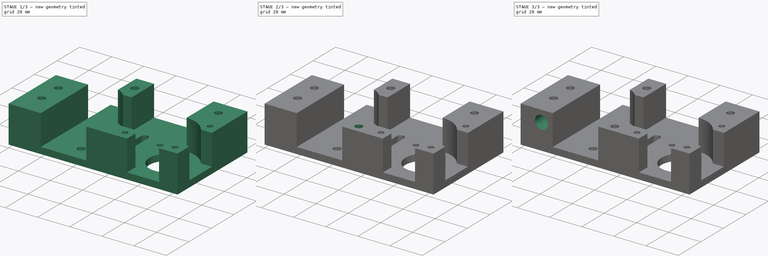
[diagram: build sequence overview — one tinted view per stage of 3, left to right]
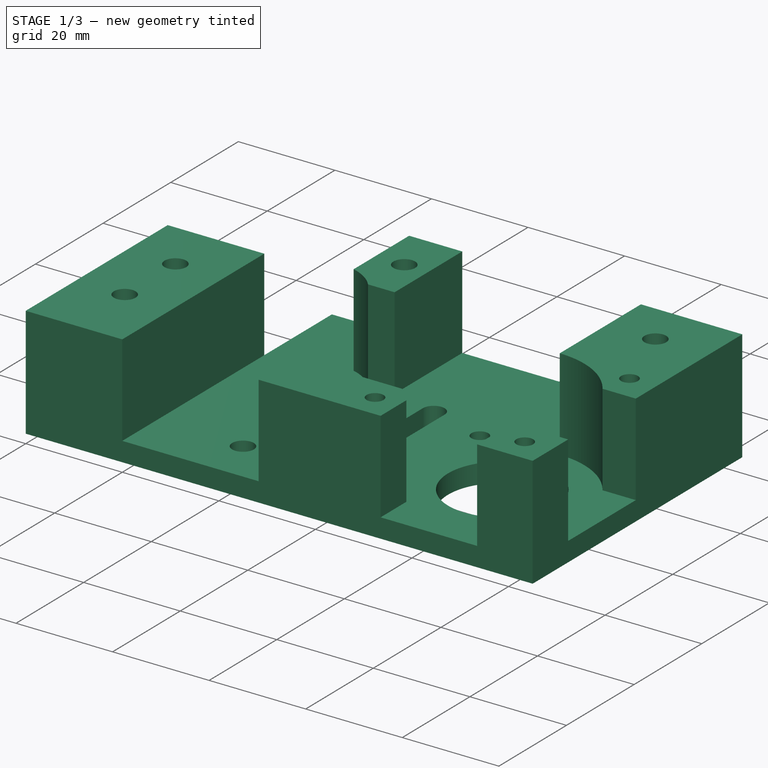
[diagram: stage 1 of 3 — iso view after this stage's code; geometry added in this stage tinted green]
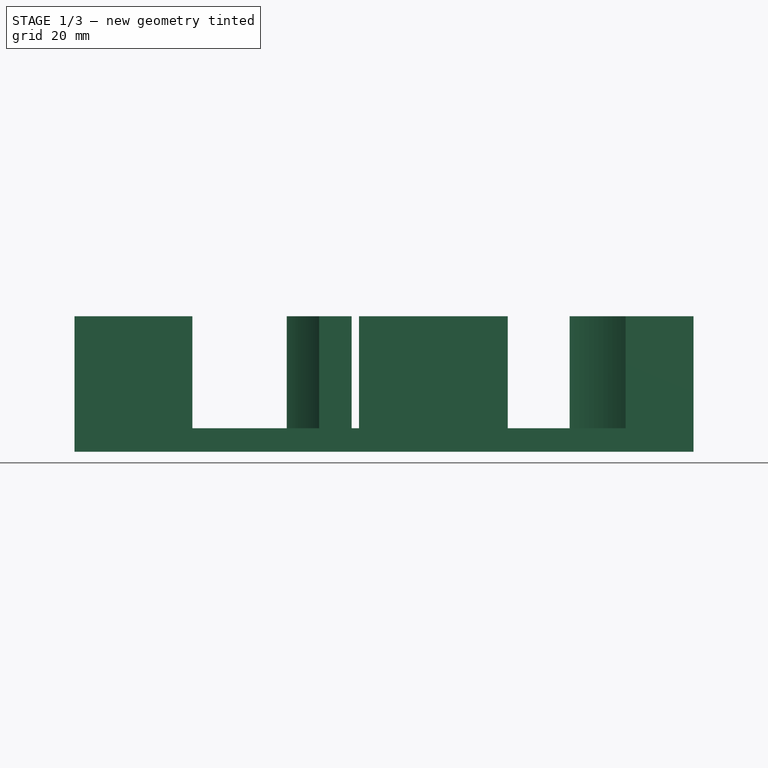
[diagram: stage 1 of 3 — front view after this stage's code; geometry added in this stage tinted green]
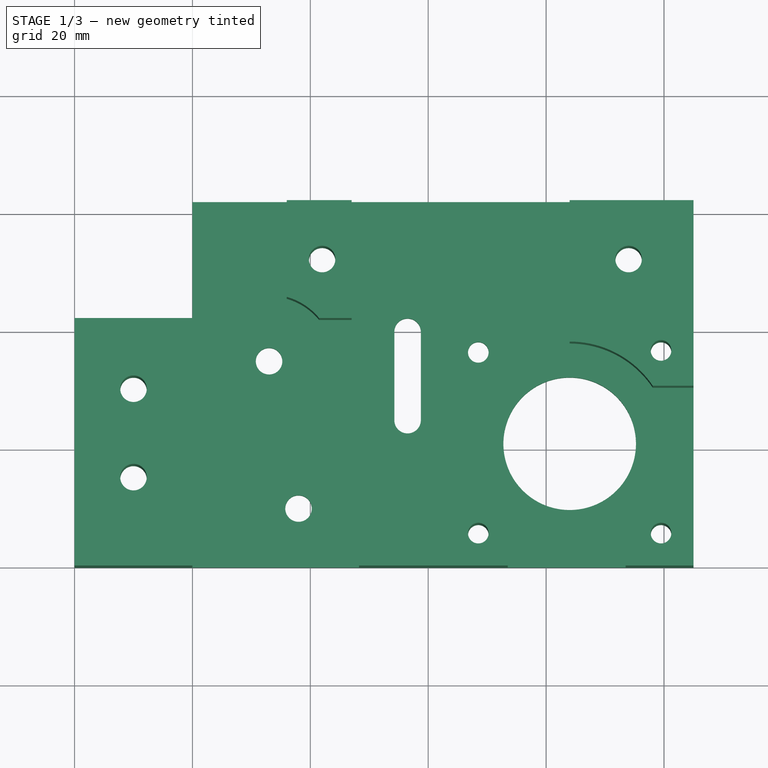
[diagram: stage 1 of 3 — top view after this stage's code; geometry added in this stage tinted green]
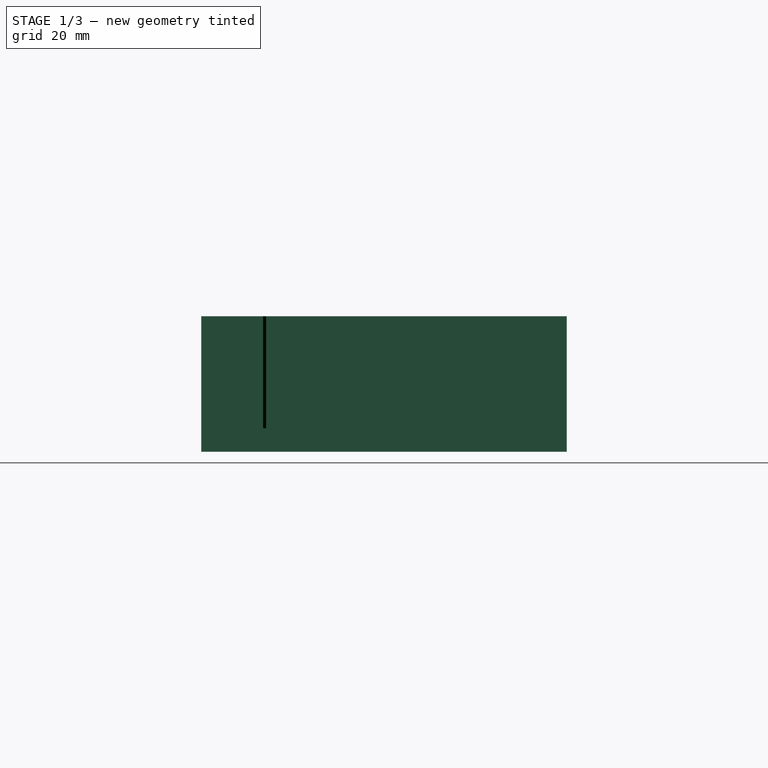
[diagram: stage 1 of 3 — right view after this stage's code; geometry added in this stage tinted green]
FCSTD DOCUMENT  (FreeCAD 0.16R4945 (Git))
Label: motor-block
License: All rights reserved
LicenseURL: http://en.wikipedia.org/wiki/All_rights_reserved
objects: Sketcher::SketchObject×5, PartDesign::Pocket×4, PartDesign::Pad×1
note: 15 computed .brp shape members not serialized (recipe doc carries the construction recipe); baked Part::Feature solids carry a one-line shape summary decoded from their .brp

FEATURE [Sketcher::SketchObject] Sketch
  sketch-geometry (26):
    g0: LineSegment StartX=0 StartY=0 StartZ=0 EndX=105 EndY=0 EndZ=0
    g1: LineSegment StartX=105 StartY=0 StartZ=0 EndX=105 EndY=62 EndZ=0
    g2: LineSegment StartX=105 StartY=62 StartZ=0 EndX=20 EndY=62 EndZ=0
    g3: LineSegment StartX=0 StartY=42 StartZ=0 EndX=0 EndY=0 EndZ=0
    g4: Circle CenterX=38 CenterY=10 CenterZ=0 NormalX=0 NormalY=0 NormalZ=1 Radius=2.25
    g5: Circle CenterX=33 CenterY=35 CenterZ=0 NormalX=0 NormalY=0 NormalZ=1 Radius=2.25
    g6: Circle CenterX=84 CenterY=21 CenterZ=0 NormalX=0 NormalY=0 NormalZ=1 Radius=11.25
    g7: LineSegment StartX=20 StartY=62 StartZ=0 EndX=20 EndY=42 EndZ=0
    g8: LineSegment StartX=20 StartY=42 StartZ=0 EndX=0 EndY=42 EndZ=0
    g9: LineSegment [constr] StartX=68.5 StartY=36.5 StartZ=0 EndX=99.5 EndY=36.5 EndZ=0
    g10: LineSegment [constr] StartX=99.5 StartY=36.5 StartZ=0 EndX=99.5 EndY=5.5 EndZ=0
    g11: LineSegment [constr] StartX=99.5 StartY=5.5 StartZ=0 EndX=68.5 EndY=5.5 EndZ=0
    g12: LineSegment [constr] StartX=68.5 StartY=5.5 StartZ=0 EndX=68.5 EndY=36.5 EndZ=0
    g13: Circle CenterX=68.5 CenterY=36.5 CenterZ=0 NormalX=0 NormalY=0 NormalZ=1 Radius=1.75
    g14: Circle CenterX=99.5 CenterY=36.5 CenterZ=0 NormalX=0 NormalY=0 NormalZ=1 Radius=1.75
    g15: Circle CenterX=68.5 CenterY=5.5 CenterZ=0 NormalX=0 NormalY=0 NormalZ=1 Radius=1.75
    g16: Circle CenterX=99.5 CenterY=5.5 CenterZ=0 NormalX=0 NormalY=0 NormalZ=1 Radius=1.75
    g17: Circle [constr] CenterX=56.5 CenterY=25 CenterZ=0 NormalX=0 NormalY=0 NormalZ=1 Radius=6.5
    g18: LineSegment StartX=58.75 StartY=25 StartZ=0 EndX=58.75 EndY=40 EndZ=0
    g19: LineSegment StartX=54.25 StartY=25 StartZ=0 EndX=54.25 EndY=40 EndZ=0
    g20: ArcOfCircle CenterX=56.5 CenterY=40 CenterZ=0 NormalX=0 NormalY=0 NormalZ=1 Radius=2.25 StartAngle=6.28318 EndAngle=9.42478
    g21: ArcOfCircle CenterX=56.5 CenterY=25 CenterZ=0 NormalX=0 NormalY=0 NormalZ=1 Radius=2.25 StartAngle=3.14159 EndAngle=6.28319
    g22: Circle CenterX=10 CenterY=30 CenterZ=0 NormalX=0 NormalY=0 NormalZ=1 Radius=2.25
    g23: Circle CenterX=10 CenterY=15 CenterZ=0 NormalX=0 NormalY=0 NormalZ=1 Radius=2.25
    g24: Circle CenterX=42 CenterY=52 CenterZ=0 NormalX=0 NormalY=0 NormalZ=1 Radius=2.25
    g25: Circle CenterX=94 CenterY=52 CenterZ=0 NormalX=0 NormalY=0 NormalZ=1 Radius=2.25
  constraints (74):
    c: Coincident(g0,g1)
    c: Coincident(g1,g2)
    c: Coincident(g3,g0)
    c: Horizontal(g0)
    c: Horizontal(g2)
    c: Vertical(g1)
    c: Vertical(g3)
    c: Distance(g0) = 105
    c: Distance(g1) = 62
    c: DistanceX(g4,g0) = -38
    c: DistanceY(g4,g0) = -10
    c: Radius(g4) = 2.25
    c: Equal(g5,g4)
    c: DistanceX(g4,g5) = -5
    c: DistanceY(g4,g5) = 25
    c: DistanceX(g6,g0) = -84
    c: DistanceY(g6,g0) = -21
    c: Coincident(g-1,g0)
    c: Vertical(g7)
    c: Coincident(g8,g7)
    c: Horizontal(g8)
    c: Coincident(g2,g7)
    c: Coincident(g3,g8)
    c: DistanceX(g3,g2) = 20
    c: DistanceY(g2,g3) = -20
    c: Radius(g6) = 11.25
    c: Coincident(g9,g10)
    c: Coincident(g10,g11)
    c: Coincident(g11,g12)
    c: Coincident(g12,g9)
    c: Horizontal(g9)
    c: Horizontal(g11)
    c: Vertical(g10)
    c: Vertical(g12)
    c: Equal(g9,g12)
    c: Distance(g9) = 31
    c: DistanceX(g6,g9) = -15.5
    c: DistanceY(g6,g11) = -15.5
    c: Coincident(g13,g9)
    c: Coincident(g14,g9)
    c: Coincident(g15,g11)
    c: Coincident(g16,g10)
    c: Equal(g13,g14)
    c: Equal(g14,g16)
    c: Equal(g16,g15)
    c: Radius(g13) = 1.75
    c: Radius(g17) = 6.5
    c: DistanceY(g6,g17) = 4
    c: DistanceX(g17,g6) = 27.5
    c: Vertical(g18)
    c: Vertical(g19)
    c: Coincident(g20,g18)
    c: Coincident(g19,g20)
    c: Tangent(g20,g19)
    c: Tangent(g20,g18)
    c: Coincident(g21,g17)
    c: Coincident(g21,g19)
    c: Coincident(g18,g21)
    c: Tangent(g21,g19)
    c: Tangent(g21,g18)
    c: Equal(g20,g5)
    c: DistanceY(g17,g20) = 15
    c: DistanceX(g-1,g23) = 10
    c: DistanceX(g-1,g22) = 10
    c: Distance(g23,g22) = 15
    c: DistanceY(g-1,g22) = 30
    c: Equal(g22,g23)
    c: Equal(g22,g5)
    c: Equal(g22,g24)
    c: DistanceY(g24,g25) = 0
    c: DistanceX(g-1,g24) = 42
    c: DistanceY(g-1,g24) = 52
    c: Distance(g24,g25) = 52
    c: Equal(g25,g24)
FEATURE [PartDesign::Pad] Pad
  Length = 23
  Length2 = 100
  Sketch = -> Sketch
  Type = 0
FEATURE [Sketcher::SketchObject] Sketch001
  Placement = pos=(0,0,23) rot=(0,0,1;0rad)
  Support = -> Pad [Face23]
  sketch-geometry (23):
    g0: ArcOfCircle CenterX=33 CenterY=35 CenterZ=0 NormalX=0 NormalY=0 NormalZ=1 Radius=11 StartAngle=0.689775 EndAngle=1.29457
    g1: ArcOfCircle CenterX=84 CenterY=21 CenterZ=0 NormalX=0 NormalY=0 NormalZ=1 Radius=17 StartAngle=3.77047 EndAngle=4.04664
    g2: LineSegment StartX=41.4853 StartY=42 StartZ=0 EndX=47 EndY=42 EndZ=0
    g3: LineSegment StartX=48.2523 StartY=11 StartZ=0 EndX=70.2523 EndY=11 EndZ=0
    g4: LineSegment StartX=20 StartY=-1 StartZ=0 EndX=48.2523 EndY=-1 EndZ=0
    g5: Circle [constr] CenterX=68.5 CenterY=5.5 CenterZ=0 NormalX=0 NormalY=0 NormalZ=1 Radius=3.5
    g6: Circle [constr] CenterX=99.5 CenterY=5.4974 CenterZ=0 NormalX=0 NormalY=0 NormalZ=1 Radius=3.5
    g7: Circle [constr] CenterX=99.5 CenterY=36.5 CenterZ=0 NormalX=0 NormalY=0 NormalZ=1 Radius=3.5
    g8: LineSegment StartX=73.5 StartY=7.63026 StartZ=0 EndX=73.5 EndY=-1 EndZ=0
    g9: LineSegment StartX=73.5 StartY=-1 StartZ=0 EndX=93.5 EndY=-1 EndZ=0
    g10: LineSegment StartX=93.5 StartY=-1 StartZ=0 EndX=93.5 EndY=6.90213 EndZ=0
    g11: ArcOfCircle CenterX=84 CenterY=21 CenterZ=0 NormalX=0 NormalY=0 NormalZ=1 Radius=17 StartAngle=5.30536 EndAngle=5.61724
    g12: LineSegment StartX=98.0996 StartY=30.4974 StartZ=0 EndX=105.5 EndY=30.4974 EndZ=0
    g13: LineSegment StartX=105.5 StartY=30.4974 StartZ=0 EndX=105.5 EndY=10.4974 EndZ=0
    g14: LineSegment StartX=105.5 StartY=10.4974 StartZ=0 EndX=97.3677 EndY=10.4974 EndZ=0
    g15: ArcOfCircle CenterX=84 CenterY=21 CenterZ=0 NormalX=0 NormalY=0 NormalZ=1 Radius=17 StartAngle=0.592782 EndAngle=1.5708
    g16: LineSegment StartX=84 StartY=38 StartZ=0 EndX=84 EndY=67 EndZ=0
    g17: LineSegment StartX=84 StartY=67 StartZ=0 EndX=47 EndY=67 EndZ=0
    g18: LineSegment StartX=47 StartY=67 StartZ=0 EndX=47 EndY=42 EndZ=0
    g19: LineSegment StartX=20 StartY=-1 StartZ=0 EndX=20 EndY=67 EndZ=0
    g20: LineSegment StartX=20 StartY=67 StartZ=0 EndX=36 EndY=67 EndZ=0
    g21: LineSegment StartX=36 StartY=67 StartZ=0 EndX=36 EndY=45.583 EndZ=0
    g22: LineSegment StartX=48.2523 StartY=11 StartZ=0 EndX=48.2523 EndY=-1 EndZ=0
  constraints (71):
    c: Radius(g1) = 17
    c: Radius(g0) = 11
    c: Horizontal(g3)
    c: Coincident(g0,g2)
    c: Horizontal(g4)
    c: Coincident(g1,g3)
    c: DistanceY(g0) = 35
    c: DistanceY(g1) = 21
    c: DistanceX(g5,g1) = 15.5
    c: DistanceY(g5,g1) = 15.5
    c: Radius(g5) = 3.5
    c: Equal(g5,g6)
    c: Equal(g6,g7)
    c: DistanceX(g6,g1) = -15.5
    c: DistanceX(g1,g7) = 15.5
    c: DistanceY(g7,g1) = -15.5
    c: DistanceY(g6,g1) = 15.5026
    c: DistanceX(g-1,g4) = 20
    c: Vertical(g8)
    c: Coincident(g8,g9)
    c: Horizontal(g9)
    c: Coincident(g9,g10)
    c: Vertical(g10)
    c: Equal(g1,g11)
    c: Coincident(g1,g8)
    c: Coincident(g11,g10)
    c: Coincident(g1,g11)
    c: DistanceY(g8) = -1
    c: Distance(g9) = 20
    c: DistanceX(g-1,g1) = 84
    c: DistanceX(g5,g8) = 5
    c: Horizontal(g12)
    c: Coincident(g12,g13)
    c: Vertical(g13)
    c: Coincident(g13,g14)
    c: Horizontal(g14)
    c: Equal(g11,g15)
    c: Coincident(g11,g14)
    c: Coincident(g15,g12)
    c: Coincident(g11,g15)
    c: Distance(g13) = 20
    c: DistanceY(g6,g13) = 5
    c: DistanceX(g6,g13) = 6
    c: Coincident(g15,g16)
    c: Vertical(g16)
    c: Coincident(g16,g17)
    c: Horizontal(g17)
    c: Coincident(g17,g18)
    c: Vertical(g18)
    c: Coincident(g2,g18)
    c: Horizontal(g2)
    c: Distance(g17) = 37
    c: Perpendicular(g16,g15)
    c: Distance(g2,g17) = 25
    c: DistanceY(g0,g0) = 7
    c: Coincident(g19,g4)
    c: Vertical(g19)
    c: Coincident(g20,g19)
    c: Horizontal(g20)
    c: Coincident(g21,g20)
    c: Coincident(g21,g0)
    c: Vertical(g21)
    c: DistanceX(g17,g20) = -11
    c: DistanceY(g20,g17) = 0
    c: Coincident(g22,g3)
    c: Vertical(g22)
    c: Coincident(g4,g22)
    c: Distance(g3) = 22
    c: Distance(g22) = 12
    c: DistanceY(g8,g4) = 0
    c: DistanceX(g0,g1) = 51
FEATURE [PartDesign::Pocket] Pocket  label="Pocket belt path"
  Length = 19
  Sketch = -> Sketch001
  Type = 0
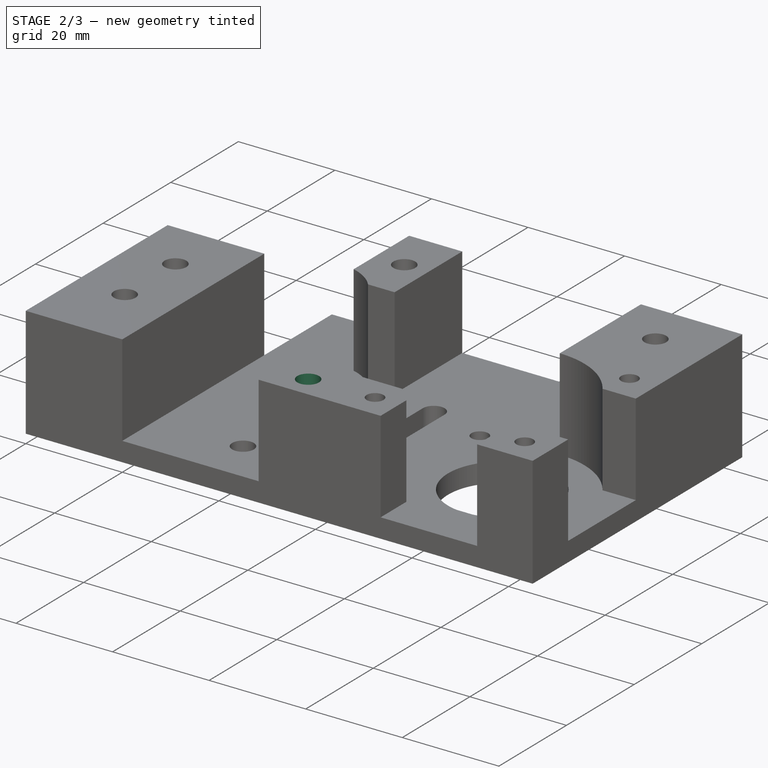
[diagram: stage 2 of 3 — iso view after this stage's code; geometry added in this stage tinted green]
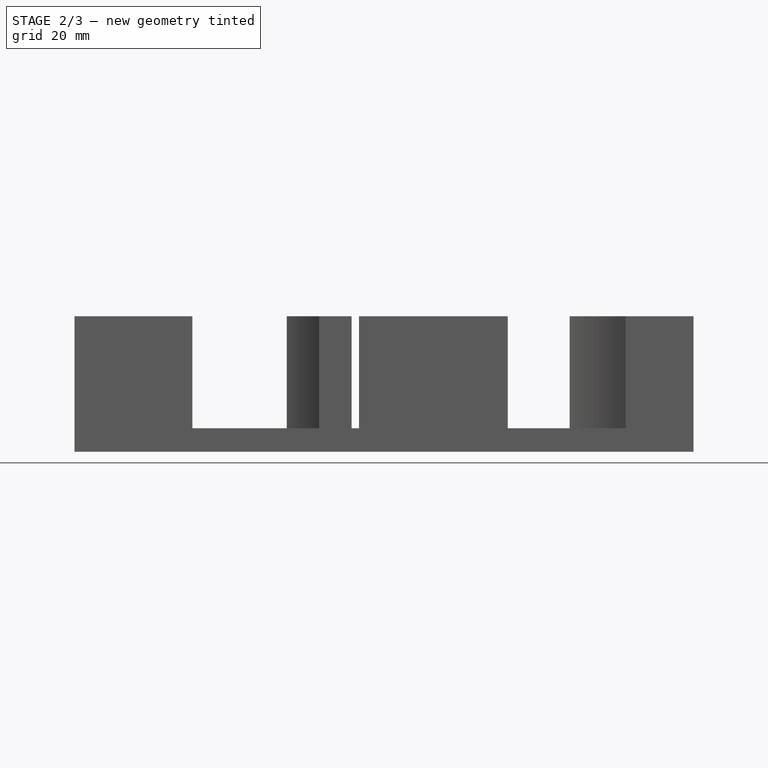
[diagram: stage 2 of 3 — front view after this stage's code; geometry added in this stage tinted green]
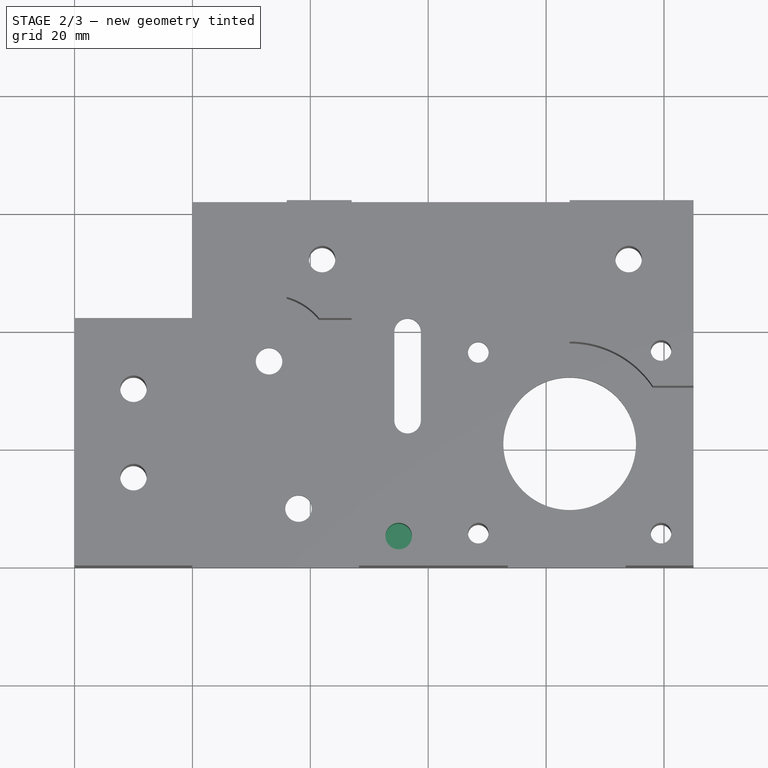
[diagram: stage 2 of 3 — top view after this stage's code; geometry added in this stage tinted green]
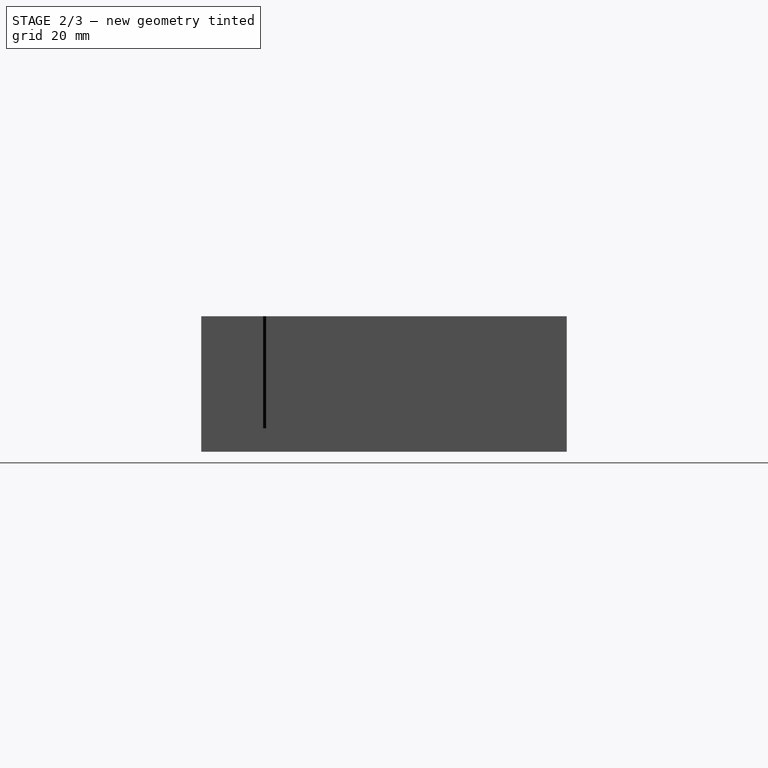
[diagram: stage 2 of 3 — right view after this stage's code; geometry added in this stage tinted green]
FEATURE [Sketcher::SketchObject] Sketch004
  ExternalGeometry = -> [Pocket]
  Placement = pos=(0,0,23) rot=(0,0,1;0rad)
  Support = -> Pocket [Face8]
  sketch-geometry (1):
    g0: Circle CenterX=55 CenterY=5 CenterZ=0 NormalX=0 NormalY=0 NormalZ=1 Radius=2.25
  constraints (3):
    c: DistanceX(g-2,g0) = 55
    c: DistanceY(g-1,g0) = 5
    c: Equal(g0,g-3)
FEATURE [PartDesign::Pocket] Pocket003
  Length = 10
  Sketch = -> Sketch004
  Type = 0
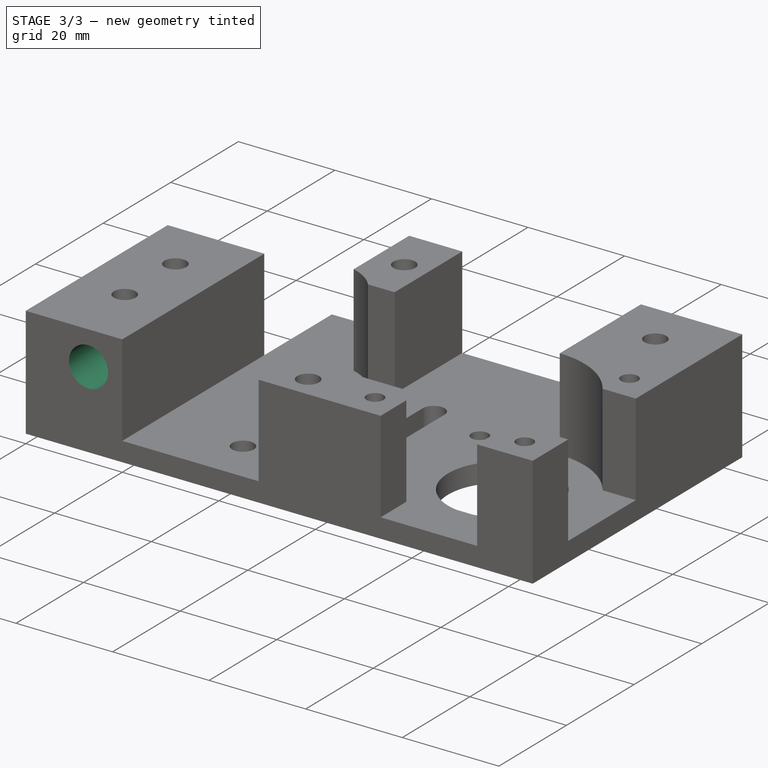
[diagram: stage 3 of 3 — iso view after this stage's code; geometry added in this stage tinted green]
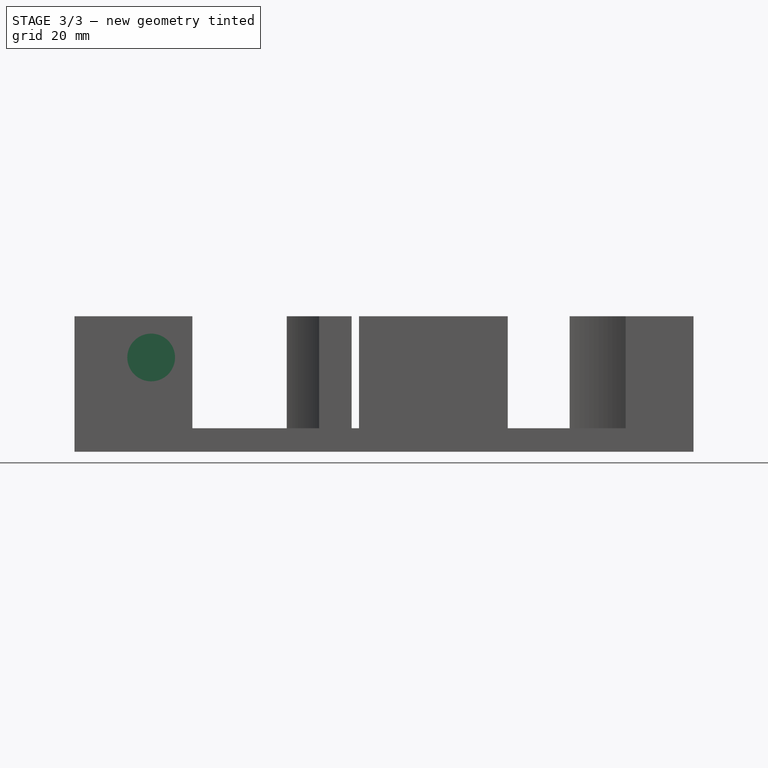
[diagram: stage 3 of 3 — front view after this stage's code; geometry added in this stage tinted green]
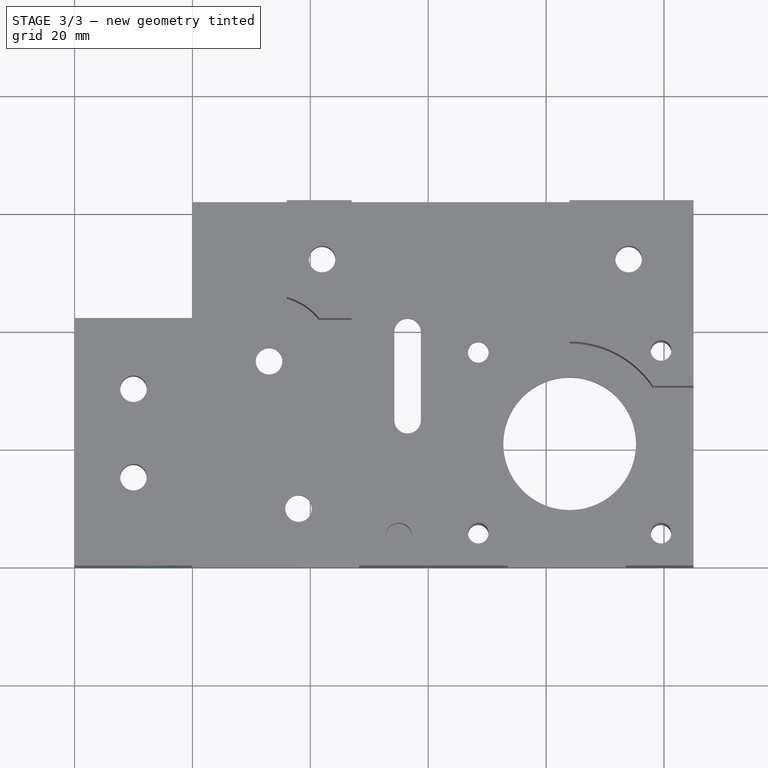
[diagram: stage 3 of 3 — top view after this stage's code; geometry added in this stage tinted green]
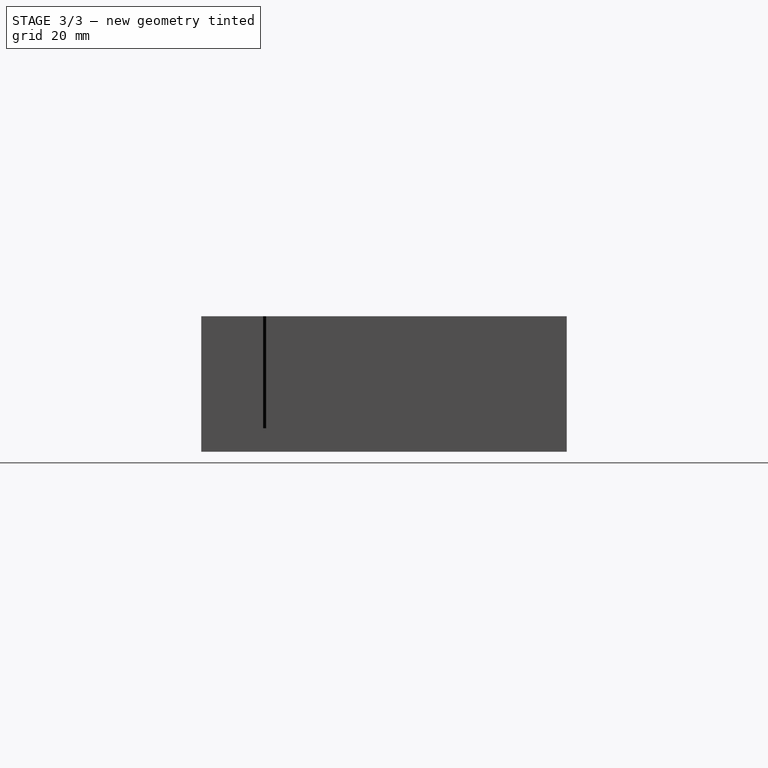
[diagram: stage 3 of 3 — right view after this stage's code; geometry added in this stage tinted green]
FEATURE [Sketcher::SketchObject] Sketch005
  Placement = pos=(0,0,0) rot=(1,0,0;1.5708rad)
  Support = -> Pocket003 [Face1]
  sketch-geometry (1):
    g0: Circle CenterX=13 CenterY=16 CenterZ=0 NormalX=0 NormalY=0 NormalZ=1 Radius=4.05
  constraints (3):
    c: Radius(g0) = 4.05
    c: DistanceY(g-1,g0) = 16
    c: DistanceX(g-2,g0) = 13
FEATURE [PartDesign::Pocket] Pocket004
  Length = 12
  Sketch = -> Sketch005
  Type = 0
FEATURE [Sketcher::SketchObject] Sketch006
  ExternalGeometry = -> [Pocket004]
  Placement = pos=(0,0,0) rot=(1,0,0;3.14159rad)
  Support = -> Pocket004 [Face2]
  sketch-geometry (4):
    g0: Circle CenterX=10 CenterY=-15 CenterZ=0 NormalX=0 NormalY=0 NormalZ=1 Radius=3.75
    g1: Circle CenterX=10 CenterY=-30 CenterZ=0 NormalX=0 NormalY=0 NormalZ=1 Radius=3.75
    g2: Circle CenterX=42 CenterY=-52 CenterZ=0 NormalX=0 NormalY=0 NormalZ=1 Radius=3.75
    g3: Circle CenterX=94 CenterY=-52 CenterZ=0 NormalX=0 NormalY=0 NormalZ=1 Radius=3.75
  constraints (8):
    c: Coincident(g0,g-3)
    c: Coincident(g1,g-4)
    c: Coincident(g2,g-5)
    c: Coincident(g3,g-6)
    c: Radius(g0) = 3.75
    c: Equal(g1,g2)
    c: Equal(g2,g3)
    c: Equal(g3,g0)
FEATURE [PartDesign::Pocket] Pocket005
  Length = 10
  Sketch = -> Sketch006
  Type = 0
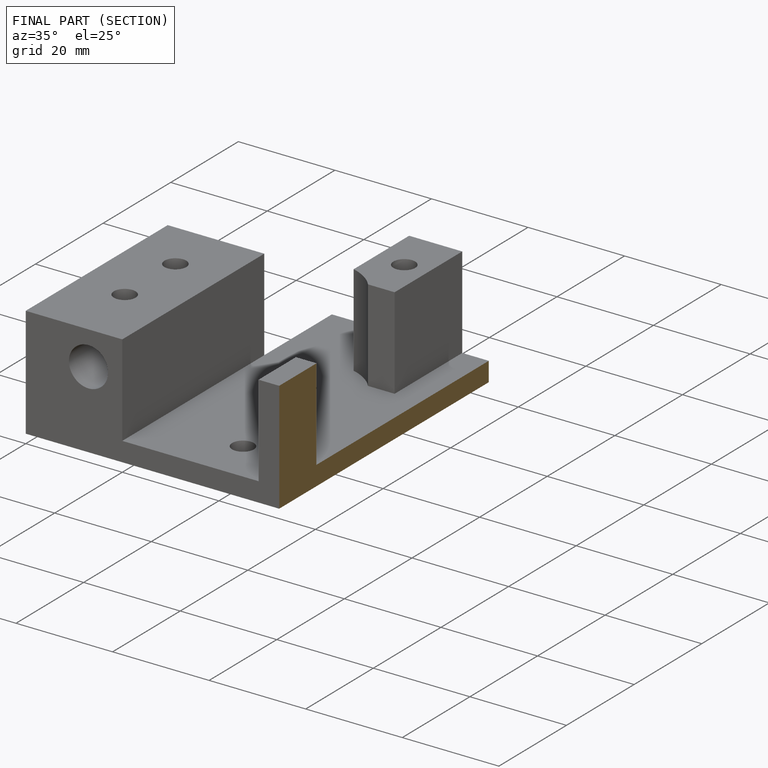
[diagram: finished part — half-section view (interior)]
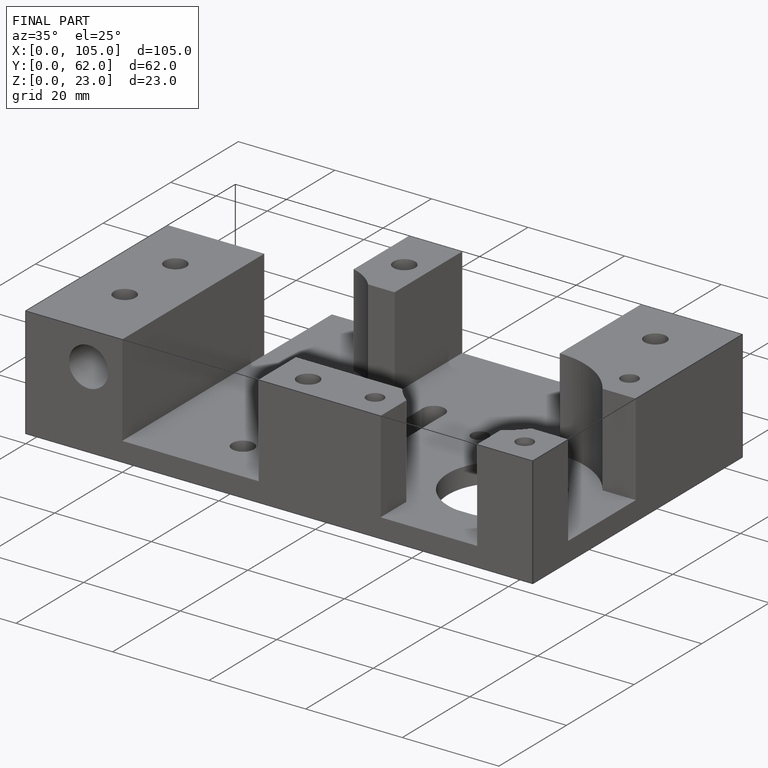
[diagram: finished part — iso view with bounding-box wireframe]
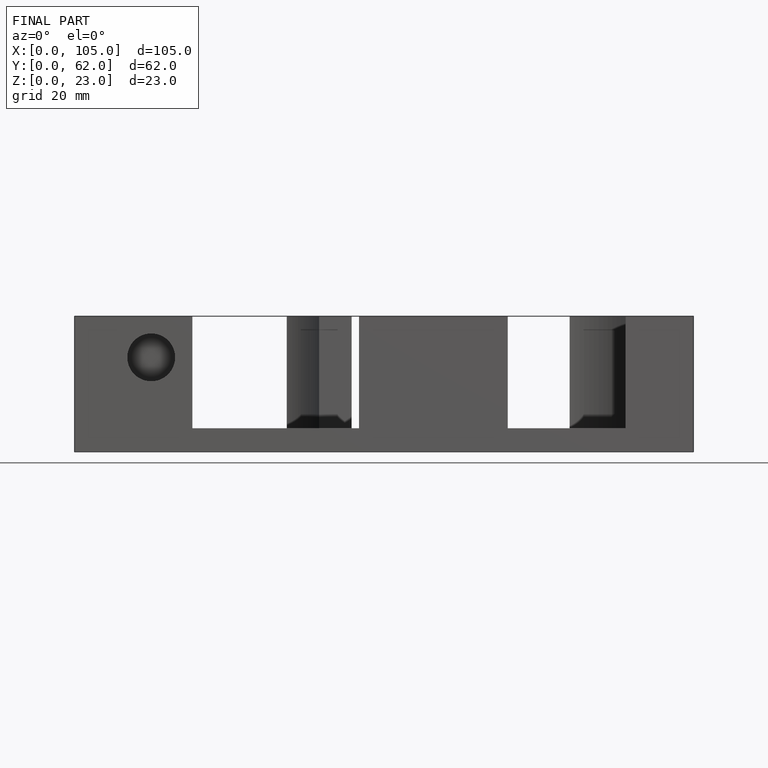
[diagram: finished part — front view with bounding-box wireframe]
